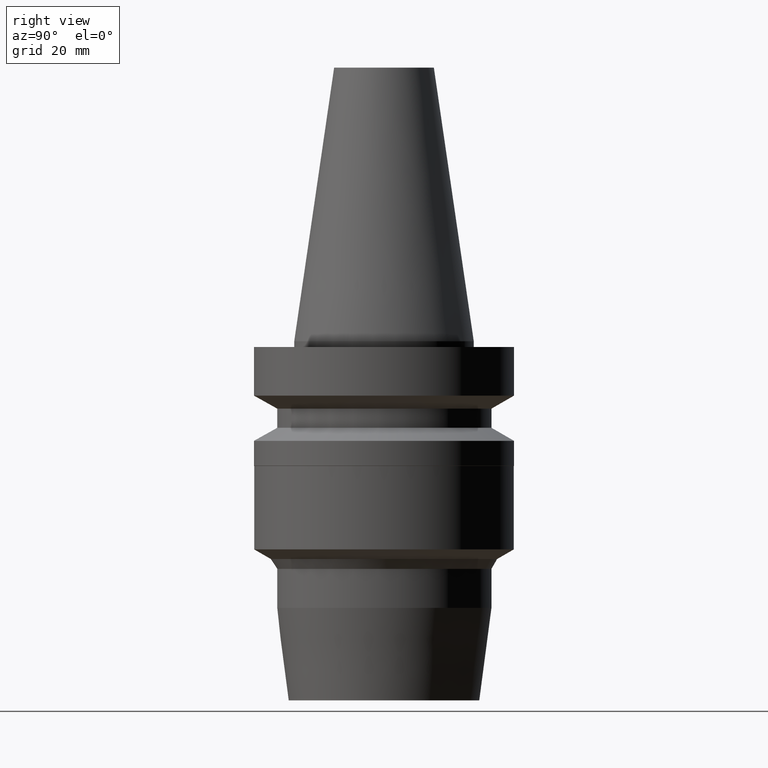
[diagram: clean part render]
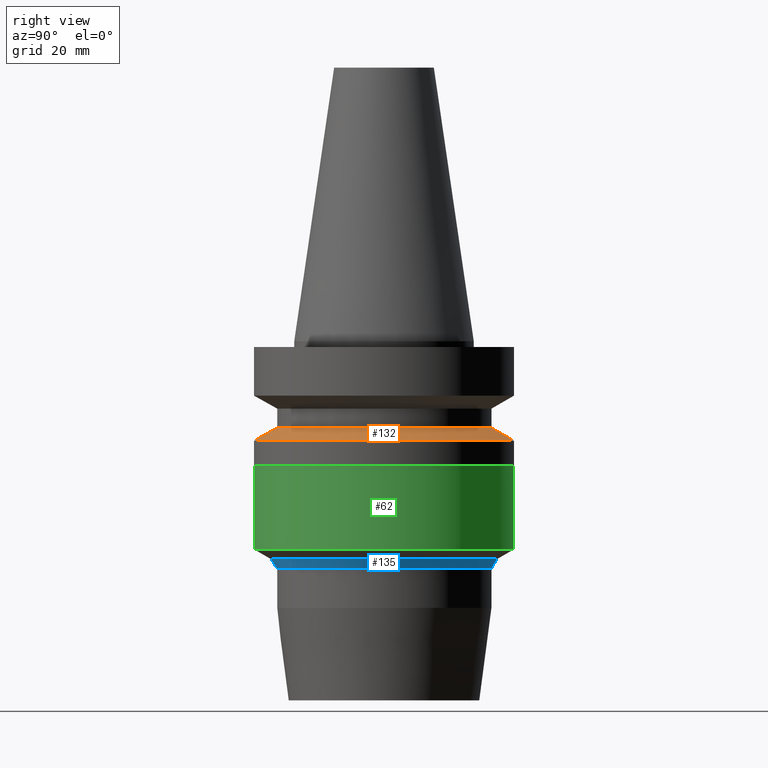
[diagram: same view with three faces highlighted in distinct colors, each labeled with its STEP entity id]
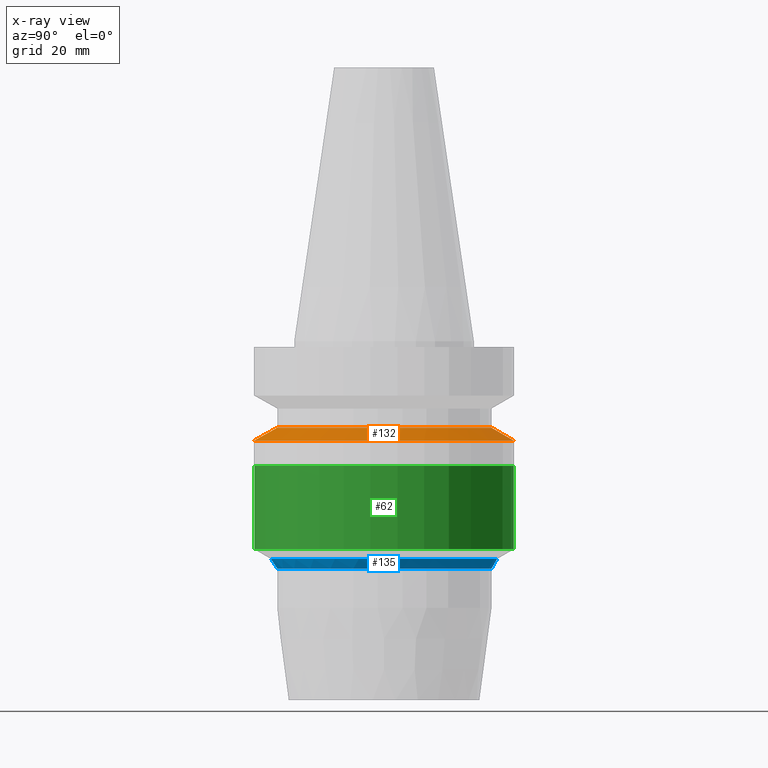
[diagram: x-ray of the same camera — body ghosted, the three highlighted faces saturated]
A machine part, right view with three faces highlighted in distinct colors.
The next image is the same camera in x-ray (body ghosted, the three faces saturated) — at least one of them is partly hidden behind the body in this view.
Their STEP definitions:

[orange] entity #132 — the highlighted conical surface has half-angle 60 deg.
#64=EDGE_CURVE('Unnamed[1]',#166,#166,#167,.T.);
#107=EDGE_CURVE('Unnamed[1]',#233,#233,#234,.T.);
#132=ADVANCED_FACE('Unnamed[1]',(#270,#271),#272,.T.);
#166=VERTEX_POINT('',#302);
#167=CIRCLE('',#303,19.0);
#233=VERTEX_POINT('',#385);
#234=CIRCLE('',#386,23.0);
#270=FACE_BOUND('',#432,.T.);
#271=FACE_BOUND('',#433,.T.);
#272=CONICAL_SURFACE('',#434,21.0,1.04719755058882);
#302=CARTESIAN_POINT('',(9.36279151221199E-016,19.0,-15.29059892));
#303=AXIS2_PLACEMENT_3D('',#457,#458,#459);
#385=CARTESIAN_POINT('',(1.07768918324967E-015,23.0,-17.6));
#386=AXIS2_PLACEMENT_3D('',#530,#531,#532);
#432=EDGE_LOOP('',(#571));
#433=EDGE_LOOP('',(#572));
#434=AXIS2_PLACEMENT_3D('',#573,#574,#575);
#457=CARTESIAN_POINT('',(9.36279151221199E-016,1.8725583024424E-015,-15.29059892));
#458=DIRECTION('',(6.12323399573677E-017,1.22464679914735E-016,-1.0));
#459=DIRECTION('',(-1.23259516440783E-032,1.0,1.22464679914735E-016));
#530=CARTESIAN_POINT('',(1.07768918324967E-015,2.15537836649934E-015,-17.6));
#531=DIRECTION('',(6.12323399573677E-017,1.22464679914735E-016,-1.0));
#532=DIRECTION('',(-1.23259516440783E-032,1.0,1.22464679914735E-016));
#571=ORIENTED_EDGE('',*,*,#107,.F.);
#572=ORIENTED_EDGE('',*,*,#64,.T.);
#573=CARTESIAN_POINT('',(1.00698416723543E-015,2.01396833447087E-015,-16.44529946));
#574=DIRECTION('',(6.12323399573677E-017,1.22464679914735E-016,-1.0));
#575=DIRECTION('',(-1.23259516440783E-032,1.0,1.22464679914735E-016));

[blue] entity #135 — the highlighted conical surface has half-angle 30 deg.
#71=EDGE_CURVE('Unnamed[1]',#177,#177,#178,.T.);
#129=EDGE_CURVE('Unnamed[1]',#266,#266,#267,.T.);
#135=ADVANCED_FACE('Unnamed[1]',(#275,#276),#277,.T.);
#177=VERTEX_POINT('',#316);
#178=CIRCLE('',#317,19.0000000000028);
#266=VERTEX_POINT('',#427);
#267=CIRCLE('',#428,19.9999999999977);
#275=FACE_BOUND('',#438,.T.);
#276=FACE_BOUND('',#439,.T.);
#277=CONICAL_SURFACE('',#440,19.5000000000002,0.523598775598225);
#316=CARTESIAN_POINT('',(2.46369753277754E-015,19.0000000000028,-40.2352341016669));
#317=AXIS2_PLACEMENT_3D('',#469,#470,#471);
#427=CARTESIAN_POINT('',(2.35764000890557E-015,19.9999999999977,-38.5031832941065));
#428=AXIS2_PLACEMENT_3D('',#567,#568,#569);
#438=EDGE_LOOP('',(#577));
#439=EDGE_LOOP('',(#578));
#440=AXIS2_PLACEMENT_3D('',#579,#580,#581);
#469=CARTESIAN_POINT('',(2.46369753277754E-015,4.92739506555508E-015,-40.2352341016669));
#470=DIRECTION('',(6.12323399573677E-017,1.22464679914735E-016,-1.0));
#471=DIRECTION('',(-1.23259516440783E-032,1.0,1.22464679914735E-016));
#567=CARTESIAN_POINT('',(2.35764000890557E-015,4.71528001781113E-015,-38.5031832941065));
#568=DIRECTION('',(6.12323399573677E-017,1.22464679914735E-016,-1.0));
#569=DIRECTION('',(-1.23259516440783E-032,1.0,1.22464679914735E-016));
#577=ORIENTED_EDGE('',*,*,#71,.F.);
#578=ORIENTED_EDGE('',*,*,#129,.T.);
#579=CARTESIAN_POINT('',(2.41066877084155E-015,4.82133754168311E-015,-39.3692086978867));
#580=DIRECTION('',(-6.12323399573677E-017,-1.22464679914735E-016,1.0));
#581=DIRECTION('',(-1.23259516440783E-032,1.0,1.22464679914735E-016));

[green] entity #62 — the highlighted cylindrical surface (bore or boss wall) has radius 22.95 mm, axis along (0, 0, -1).
#62=ADVANCED_FACE('Unnamed[1]',(#162,#163),#164,.T.);
#69=EDGE_CURVE('Unnamed[1]',#174,#174,#175,.T.);
#111=EDGE_CURVE('Unnamed[1]',#239,#239,#240,.T.);
#162=FACE_BOUND('',#297,.T.);
#163=FACE_BOUND('',#298,.T.);
#164=CYLINDRICAL_SURFACE('',#299,22.9500000000001);
#174=VERTEX_POINT('',#312);
#175=CIRCLE('',#313,22.9500000000004);
#239=VERTEX_POINT('',#393);
#240=CIRCLE('',#394,22.9499999999999);
#297=EDGE_LOOP('',(#452));
#298=EDGE_LOOP('',(#453));
#299=AXIS2_PLACEMENT_3D('',#454,#455,#456);
#312=CARTESIAN_POINT('',(2.25335011043082E-015,22.9500000000004,-36.799999999995));
#313=AXIS2_PLACEMENT_3D('',#466,#467,#468);
#393=CARTESIAN_POINT('',(1.35017309606004E-015,22.9499999999999,-22.0500000000013));
#394=AXIS2_PLACEMENT_3D('',#536,#537,#538);
#452=ORIENTED_EDGE('',*,*,#69,.F.);
#453=ORIENTED_EDGE('',*,*,#111,.T.);
#454=CARTESIAN_POINT('',(1.80176160324543E-015,3.60352320649086E-015,-29.4249999999982));
#455=DIRECTION('',(6.12323399573677E-017,1.22464679914735E-016,-1.0));
#456=DIRECTION('',(-1.23259516440783E-032,1.0,1.22464679914735E-016));
#466=CARTESIAN_POINT('',(2.25335011043082E-015,4.50670022086164E-015,-36.799999999995));
#467=DIRECTION('',(6.12323399573677E-017,1.22464679914735E-016,-1.0));
#468=DIRECTION('',(-1.23259516440783E-032,1.0,1.22464679914735E-016));
#536=CARTESIAN_POINT('',(1.35017309606004E-015,2.70034619212008E-015,-22.0500000000013));
#537=DIRECTION('',(6.12323399573677E-017,1.22464679914735E-016,-1.0));
#538=DIRECTION('',(-1.23259516440783E-032,1.0,1.22464679914735E-016));